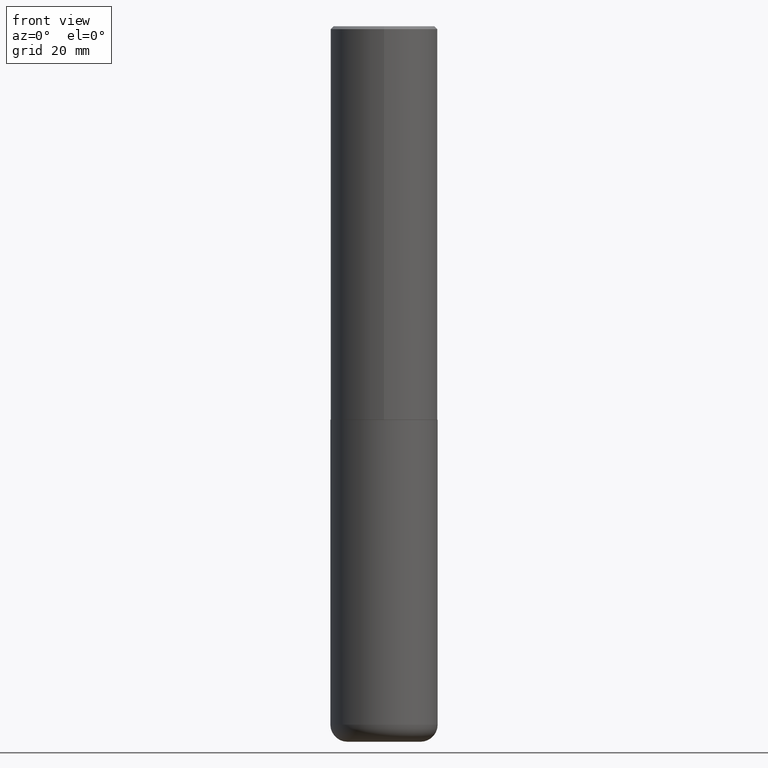
[diagram: clean part render]
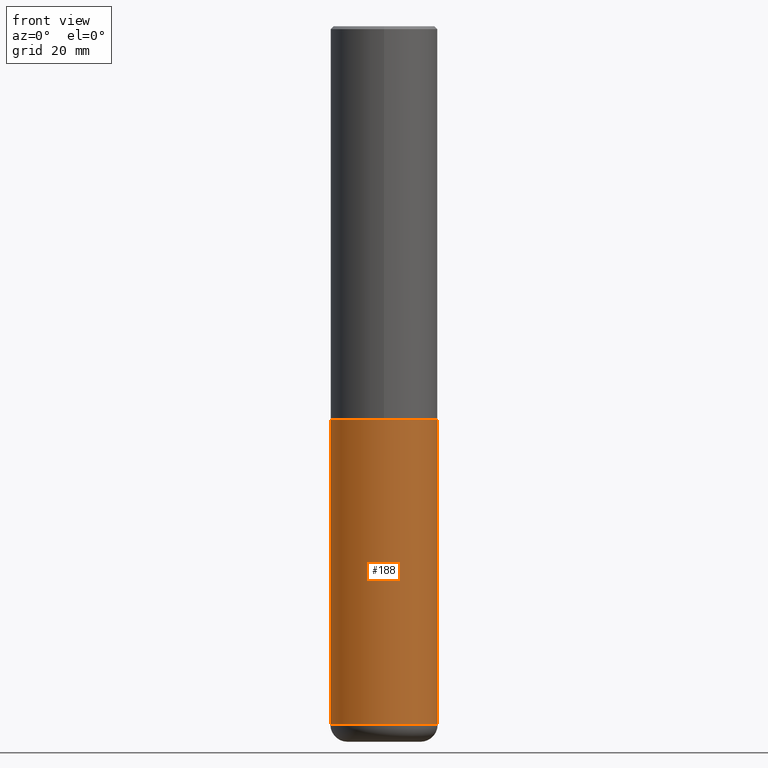
[diagram: same view with one face highlighted and labeled with its STEP entity id]
A machine part, front view. The second image highlights one B-rep face of the part: STEP entity #188.
In plain terms, the highlighted cylindrical surface (partial cylindrical patch) has radius 9.525 mm, axis along (-0, 0, 1).
Its self-contained STEP definition (entity closure, byte-faithful):
#1 = CARTESIAN_POINT ( 'NONE',  ( -0.3750000000000000555, 2.664535259100376091E-15, -1.844600658845589598E-29 ) ) ;
#2 = EDGE_CURVE ( 'NONE', #78, #285, #305, .T. ) ;
#4 = DIRECTION ( 'NONE',  ( 1.000000000000000000, -6.982962677686261189E-15, 0.000000000000000000 ) ) ;
#17 = CARTESIAN_POINT ( 'NONE',  ( 0.3749999999999999445, -1.965703993768690011E-14, -4.880000000000000782 ) ) ;
#25 = DIRECTION ( 'NONE',  ( -2.445468806185136597E-29, 3.491481338843145583E-15, 1.000000000000000000 ) ) ;
#45 = AXIS2_PLACEMENT_3D ( 'NONE', #124, #312, #58 ) ;
#49 = EDGE_LOOP ( 'NONE', ( #137, #172, #176, #326 ) ) ;
#58 = DIRECTION ( 'NONE',  ( 1.000000000000000000, -6.982962677686266711E-15, 0.000000000000000000 ) ) ;
#66 = CARTESIAN_POINT ( 'NONE',  ( -0.3750000000000000555, -1.065546604858622507E-14, -2.750000000000000000 ) ) ;
#72 = CARTESIAN_POINT ( 'NONE',  ( -0.3749999999999999445, -1.437389367445417440E-14, -4.880000000000000782 ) ) ;
#78 = VERTEX_POINT ( 'NONE', #17 ) ;
#106 = FACE_OUTER_BOUND ( 'NONE', #49, .T. ) ;
#117 = DIRECTION ( 'NONE',  ( -2.445468806185136877E-29, 3.491481338843145188E-15, 1.000000000000000000 ) ) ;
#124 = CARTESIAN_POINT ( 'NONE',  ( 6.725039217009124520E-29, -9.601573681818649859E-15, -2.750000000000000000 ) ) ;
#127 = CYLINDRICAL_SURFACE ( 'NONE', #357, 0.3750000000000000555 ) ;
#137 = ORIENTED_EDGE ( 'NONE', *, *, #275, .F. ) ;
#141 = AXIS2_PLACEMENT_3D ( 'NONE', #389, #25, #4 ) ;
#167 = EDGE_CURVE ( 'NONE', #214, #285, #381, .T. ) ;
#172 = ORIENTED_EDGE ( 'NONE', *, *, #192, .T. ) ;
#176 = ORIENTED_EDGE ( 'NONE', *, *, #2, .T. ) ;
#188 = ADVANCED_FACE ( 'NONE', ( #106 ), #127, .T. ) ;
#192 = EDGE_CURVE ( 'NONE', #213, #78, #397, .T. ) ;
#201 = CARTESIAN_POINT ( 'NONE',  ( 0.000000000000000000, 0.000000000000000000, 0.000000000000000000 ) ) ;
#213 = VERTEX_POINT ( 'NONE', #72 ) ;
#214 = VERTEX_POINT ( 'NONE', #66 ) ;
#227 = VECTOR ( 'NONE', #117, 39.37007874015748143 ) ;
#275 = EDGE_CURVE ( 'NONE', #213, #214, #291, .T. ) ;
#285 = VERTEX_POINT ( 'NONE', #328 ) ;
#291 = LINE ( 'NONE', #1, #342 ) ;
#305 = LINE ( 'NONE', #400, #227 ) ;
#312 = DIRECTION ( 'NONE',  ( -2.445468806185136597E-29, 3.491481338843145583E-15, 1.000000000000000000 ) ) ;
#322 = DIRECTION ( 'NONE',  ( 1.000000000000000000, -6.982962677686265922E-15, 4.876176775795935793E-29 ) ) ;
#326 = ORIENTED_EDGE ( 'NONE', *, *, #167, .F. ) ;
#327 = DIRECTION ( 'NONE',  ( -2.445468806185136597E-29, 3.491481338843145583E-15, 1.000000000000000000 ) ) ;
#328 = CARTESIAN_POINT ( 'NONE',  ( 0.3750000000000000555, -1.222018468595100145E-14, -2.750000000000000000 ) ) ;
#342 = VECTOR ( 'NONE', #386, 39.37007874015748143 ) ;
#357 = AXIS2_PLACEMENT_3D ( 'NONE', #201, #327, #322 ) ;
#381 = CIRCLE ( 'NONE', #45, 0.3750000000000000555 ) ;
#386 = DIRECTION ( 'NONE',  ( -2.445468806185136877E-29, 3.491481338843145188E-15, 1.000000000000000000 ) ) ;
#389 = CARTESIAN_POINT ( 'NONE',  ( 1.193388777418346668E-28, -1.703842893355455010E-14, -4.880000000000000782 ) ) ;
#397 = CIRCLE ( 'NONE', #141, 0.3750000000000000555 ) ;
#400 = CARTESIAN_POINT ( 'NONE',  ( 0.3750000000000000555, -2.618611004132350016E-15, 1.828566290923476203E-29 ) ) ;